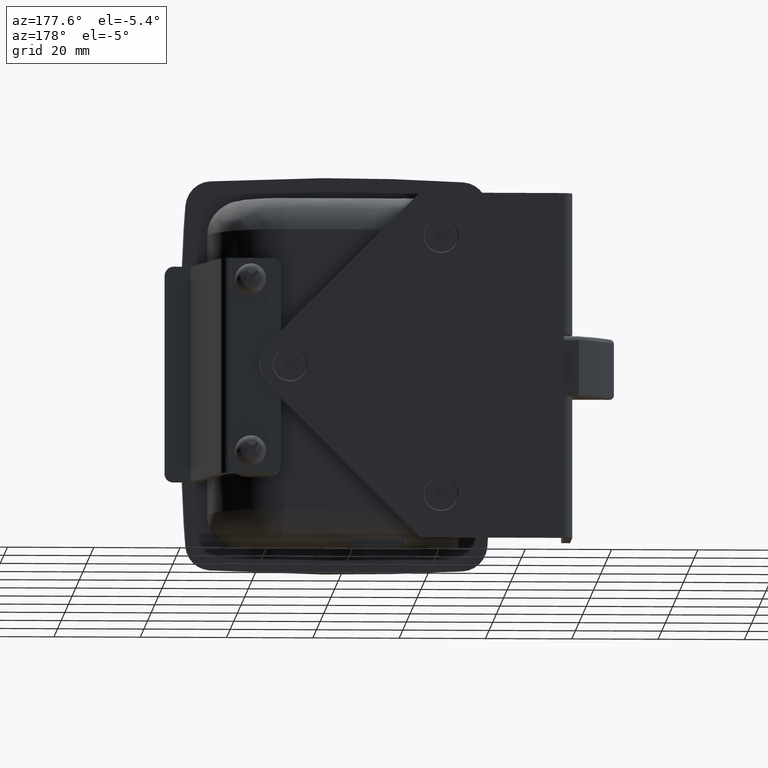
[diagram: clean part render]
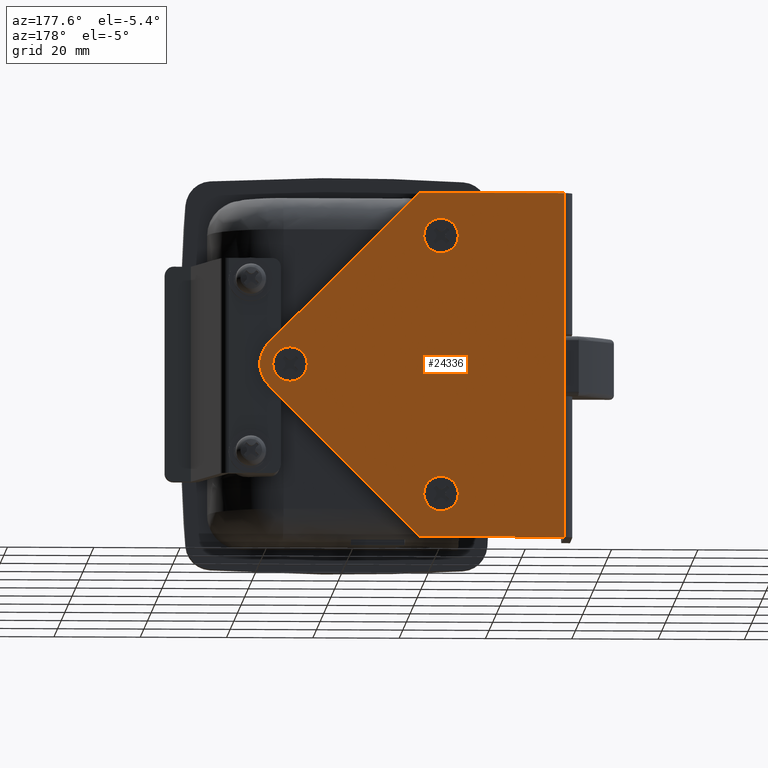
[diagram: same view with one face highlighted and labeled with its STEP entity id]
A machine part, auxiliary view. The second image highlights one B-rep face of the part: STEP entity #24336.
In plain terms, the highlighted face is a freeform B-spline surface patch.
Its self-contained STEP definition (entity closure, byte-faithful):
#19249=CARTESIAN_POINT('',(-20.133396563855019,-0.000000210587792,-32.789727528948703));
#19250=VERTEX_POINT('',#19249);
#19256=CARTESIAN_POINT('',(-23.0,0.0,-33.999999999999893));
#19257=VERTEX_POINT('',#19256);
#19258=CARTESIAN_POINT('',(-23.0,0.0,-33.999999999999893));
#19259=CARTESIAN_POINT('',(-22.667094508049530,-0.000000024456062,-34.000055991093582));
#19260=CARTESIAN_POINT('',(-21.934650458644938,-0.000000078263217,-33.908178191010009));
#19261=CARTESIAN_POINT('',(-20.942227840097189,-0.000000151169042,-33.489129033503417));
#19262=CARTESIAN_POINT('',(-20.365531153862129,-0.000000193534610,-33.028355215674729));
#19263=CARTESIAN_POINT('',(-20.133396563855019,-0.000000210587792,-32.789727528948703));
#19264=B_SPLINE_CURVE_WITH_KNOTS('',3,(#19258,#19259,#19260,#19261,#19262,#19263),.UNSPECIFIED.,.F.,.U.,(4,1,1,4),(0.000000034648143,0.998744305631383,2.197230040681927,3.195974311626448),.UNSPECIFIED.);
#19265=EDGE_CURVE('',#19257,#19250,#19264,.T.);
#19267=CARTESIAN_POINT('',(-26.999999999999531,0.0,-30.000001685324719));
#19268=VERTEX_POINT('',#19267);
#19269=CARTESIAN_POINT('',(-26.999999999999531,0.0,-30.000001685324719));
#19270=CARTESIAN_POINT('',(-27.000313395828961,0.0,-30.441841702235770));
#19271=CARTESIAN_POINT('',(-26.895878037058271,0.0,-31.063393605895829));
#19272=CARTESIAN_POINT('',(-26.520134759852692,0.0,-31.955085279077821));
#19273=CARTESIAN_POINT('',(-26.076152879275980,0.0,-32.610822663651682));
#19274=CARTESIAN_POINT('',(-25.353362716734480,0.0,-33.282246860508579));
#19275=CARTESIAN_POINT('',(-24.357889448853829,0.0,-33.838339061026097));
#19276=CARTESIAN_POINT('',(-23.490908774452279,0.0,-34.000396904762013));
#19277=CARTESIAN_POINT('',(-23.0,0.0,-33.999999999999893));
#19278=B_SPLINE_CURVE_WITH_KNOTS('',3,(#19269,#19270,#19271,#19272,#19273,#19274,#19275,#19276,#19277),.UNSPECIFIED.,.F.,.U.,(4,1,1,1,1,1,4),(0.000000132171101,1.325361099585745,1.865337516033662,2.896177789759722,3.681547613703553,4.810595681567911,6.283223781628146),.UNSPECIFIED.);
#19279=EDGE_CURVE('',#19268,#19257,#19278,.T.);
#19281=CARTESIAN_POINT('',(-23.0,0.0,-26.000000000000110));
#19282=VERTEX_POINT('',#19281);
#19283=CARTESIAN_POINT('',(-23.0,0.0,-26.000000000000110));
#19284=CARTESIAN_POINT('',(-23.376357173042170,0.0,-25.999834935176850));
#19285=CARTESIAN_POINT('',(-23.998025051340850,0.0,-26.088458537004222));
#19286=CARTESIAN_POINT('',(-24.869839752274729,0.0,-26.430861880723679));
#19287=CARTESIAN_POINT('',(-25.502481474280579,0.0,-26.848006654738750));
#19288=CARTESIAN_POINT('',(-26.054371184769540,0.0,-27.386574560065409));
#19289=CARTESIAN_POINT('',(-26.507101099517410,0.0,-28.012812725565020));
#19290=CARTESIAN_POINT('',(-26.895523964536270,0.0,-28.903796497246230));
#19291=CARTESIAN_POINT('',(-27.000176277191709,0.0,-29.607285831330969));
#19292=CARTESIAN_POINT('',(-26.999999999999531,0.0,-30.000001685324719));
#19293=B_SPLINE_CURVE_WITH_KNOTS('',3,(#19283,#19284,#19285,#19286,#19287,#19288,#19289,#19290,#19291,#19292),.UNSPECIFIED.,.F.,.U.,(4,1,1,1,1,1,1,4),(0.000000131565022,1.129010651891294,1.865338079667567,2.798016372485245,3.387044035746730,4.172444300581839,5.105124160417382,6.283225681393846),.UNSPECIFIED.);
#19294=EDGE_CURVE('',#19282,#19268,#19293,.T.);
#19296=CARTESIAN_POINT('',(-20.050890188576538,0.000000209863909,-27.297638744190721));
#19297=VERTEX_POINT('',#19296);
#19298=CARTESIAN_POINT('',(-20.050890188576538,0.000000209863909,-27.297638744190721));
#19299=CARTESIAN_POINT('',(-20.237563411194589,0.000000196579910,-27.093878884505539));
#19300=CARTESIAN_POINT('',(-20.705308235842381,0.000000163294355,-26.679160663921049));
#19301=CARTESIAN_POINT('',(-21.687570287777049,0.000000093394837,-26.152200643952789));
#19302=CARTESIAN_POINT('',(-22.516351653767661,0.000000034417278,-25.999637956784689));
#19303=CARTESIAN_POINT('',(-23.0,0.0,-26.000000000000110));
#19304=B_SPLINE_CURVE_WITH_KNOTS('',3,(#19298,#19299,#19300,#19301,#19302,#19303),.UNSPECIFIED.,.F.,.U.,(4,1,1,4),(0.000000036765950,0.829037971213209,1.865317210744966,3.316149023009813),.UNSPECIFIED.);
#19305=EDGE_CURVE('',#19297,#19282,#19304,.T.);
#19387=CARTESIAN_POINT('',(-19.000000000000469,0.0,-29.999998314675331));
#19388=VERTEX_POINT('',#19387);
#19389=CARTESIAN_POINT('',(-19.000000000000469,0.0,-29.999998314675331));
#19390=CARTESIAN_POINT('',(-18.999573571147181,0.000000037209144,-29.520866368812442));
#19391=CARTESIAN_POINT('',(-19.132124597284221,0.000000093590686,-28.794856767381759));
#19392=CARTESIAN_POINT('',(-19.566079847803358,0.000000162978666,-27.901366964011689));
#19393=CARTESIAN_POINT('',(-19.873379125968391,0.000000194823798,-27.491306060075321));
#19394=CARTESIAN_POINT('',(-20.050890188576538,0.000000209863909,-27.297638744190721));
#19395=B_SPLINE_CURVE_WITH_KNOTS('',3,(#19389,#19390,#19391,#19392,#19393,#19394),.UNSPECIFIED.,.F.,.U.,(4,1,1,4),(0.000000030478492,1.437197427992151,2.178945364975647,2.967074882568598),.UNSPECIFIED.);
#19396=EDGE_CURVE('',#19388,#19297,#19395,.T.);
#19398=CARTESIAN_POINT('',(-20.133396563855019,-0.000000210587792,-32.789727528948703));
#19399=CARTESIAN_POINT('',(-19.819114003363921,-0.000000186245870,-32.467261602177942));
#19400=CARTESIAN_POINT('',(-19.468116375392391,-0.000000147696019,-31.956578355505702));
#19401=CARTESIAN_POINT('',(-19.091612941264898,-0.000000075245266,-30.996798206359632));
#19402=CARTESIAN_POINT('',(-18.999751699863950,-0.000000031561525,-30.418104660514050));
#19403=CARTESIAN_POINT('',(-19.000000000000469,0.0,-29.999998314675331));
#19404=B_SPLINE_CURVE_WITH_KNOTS('',3,(#19398,#19399,#19400,#19401,#19402,#19403),.UNSPECIFIED.,.F.,.U.,(4,1,1,4),(0.000000032950937,1.350685079874031,1.833042686037790,3.087251644405259),.UNSPECIFIED.);
#19405=EDGE_CURVE('',#19250,#19388,#19404,.T.);
#19651=CARTESIAN_POINT('',(-20.133396563855030,-0.000000210587794,27.210472471051300));
#19652=VERTEX_POINT('',#19651);
#19658=CARTESIAN_POINT('',(-23.0,0.0,26.000200000000120));
#19659=VERTEX_POINT('',#19658);
#19660=CARTESIAN_POINT('',(-23.0,0.0,26.000200000000120));
#19661=CARTESIAN_POINT('',(-22.667077428343980,-0.000000024457317,26.000107496886269));
#19662=CARTESIAN_POINT('',(-22.051242626510241,-0.000000069698068,26.077549095233511));
#19663=CARTESIAN_POINT('',(-21.046975440607309,-0.000000143474025,26.450690955066889));
#19664=CARTESIAN_POINT('',(-20.446642847415362,-0.000000187575946,26.888120961807001));
#19665=CARTESIAN_POINT('',(-20.133396563855030,-0.000000210587794,27.210472471051300));
#19666=B_SPLINE_CURVE_WITH_KNOTS('',3,(#19660,#19661,#19662,#19663,#19664,#19665),.UNSPECIFIED.,.F.,.U.,(4,1,1,4),(0.000000034646320,0.998744305630864,1.847671395617139,3.195974311626441),.UNSPECIFIED.);
#19667=EDGE_CURVE('',#19659,#19652,#19666,.T.);
#19669=CARTESIAN_POINT('',(-26.999999999999542,0.0,30.000198314675291));
#19670=VERTEX_POINT('',#19669);
#19671=CARTESIAN_POINT('',(-26.999999999999542,0.0,30.000198314675291));
#19672=CARTESIAN_POINT('',(-27.000303790733138,0.0,29.558367028933510));
#19673=CARTESIAN_POINT('',(-26.887661001884219,0.0,28.887710196191101));
#19674=CARTESIAN_POINT('',(-26.508223559684119,0.0,28.031941757806980));
#19675=CARTESIAN_POINT('',(-25.996824722881851,0.0,27.286094586133100));
#19676=CARTESIAN_POINT('',(-25.298514618467149,0.0,26.676324521092770));
#19677=CARTESIAN_POINT('',(-24.464412591304200,0.0,26.250177660593248));
#19678=CARTESIAN_POINT('',(-23.736307678243382,0.0,26.043862017544349));
#19679=CARTESIAN_POINT('',(-23.229069011827921,0.0,26.000188478905901));
#19680=CARTESIAN_POINT('',(-23.0,0.0,26.000200000000120));
#19681=B_SPLINE_CURVE_WITH_KNOTS('',3,(#19671,#19672,#19673,#19674,#19675,#19676,#19677,#19678,#19679,#19680),.UNSPECIFIED.,.F.,.U.,(4,1,1,1,1,1,1,4),(0.000000132154022,1.325361099572937,2.012608105020446,2.798015525534259,4.025170419548584,4.761506139046562,5.596011326107456,6.283223781628146),.UNSPECIFIED.);
#19682=EDGE_CURVE('',#19670,#19659,#19681,.T.);
#19684=CARTESIAN_POINT('',(-23.0,0.0,34.000199999999893));
#19685=VERTEX_POINT('',#19684);
#19686=CARTESIAN_POINT('',(-23.0,0.0,34.000199999999893));
#19687=CARTESIAN_POINT('',(-23.441835230287712,0.0,34.000518313902752));
#19688=CARTESIAN_POINT('',(-24.112484178113569,0.0,33.887845821984932));
#19689=CARTESIAN_POINT('',(-24.968289967757350,0.0,33.508456236688602));
#19690=CARTESIAN_POINT('',(-25.537695694522490,0.0,33.117793398375142));
#19691=CARTESIAN_POINT('',(-26.077865524758160,0.0,32.590719597750677));
#19692=CARTESIAN_POINT('',(-26.580388666480850,0.0,31.877427936415781));
#19693=CARTESIAN_POINT('',(-26.925680902039929,0.0,30.965599678390870));
#19694=CARTESIAN_POINT('',(-27.000028534526550,0.0,30.294711632714119));
#19695=CARTESIAN_POINT('',(-26.999999999999542,0.0,30.000198314675291));
#19696=B_SPLINE_CURVE_WITH_KNOTS('',3,(#19686,#19687,#19688,#19689,#19690,#19691,#19692,#19693,#19694,#19695),.UNSPECIFIED.,.F.,.U.,(4,1,1,1,1,1,1,4),(0.000000131578755,1.325361499785727,2.012608712971561,2.798016372491647,3.387044035751353,4.270618328300147,5.399666954597524,6.283225681393748),.UNSPECIFIED.);
#19697=EDGE_CURVE('',#19685,#19670,#19696,.T.);
#19699=CARTESIAN_POINT('',(-20.050890188576531,0.000000209863909,32.702561255809293));
#19700=VERTEX_POINT('',#19699);
#19701=CARTESIAN_POINT('',(-20.050890188576531,0.000000209863909,32.702561255809293));
#19702=CARTESIAN_POINT('',(-20.237562078336939,0.000000196580004,32.906323772159098));
#19703=CARTESIAN_POINT('',(-20.705307466696159,0.000000163294409,33.321043406812301));
#19704=CARTESIAN_POINT('',(-21.687577524123729,0.000000093394322,33.847971582733351));
#19705=CARTESIAN_POINT('',(-22.516346763644989,0.000000034417626,34.000589474540448));
#19706=CARTESIAN_POINT('',(-23.0,0.0,34.000199999999893));
#19707=B_SPLINE_CURVE_WITH_KNOTS('',3,(#19701,#19702,#19703,#19704,#19705,#19706),.UNSPECIFIED.,.F.,.U.,(4,1,1,4),(0.000000036766457,0.829037971214180,1.865317210745354,3.316149023009781),.UNSPECIFIED.);
#19708=EDGE_CURVE('',#19700,#19685,#19707,.T.);
#19791=CARTESIAN_POINT('',(-19.000000000000469,0.0,30.000201685324679));
#19792=VERTEX_POINT('',#19791);
#19793=CARTESIAN_POINT('',(-19.000000000000469,0.0,30.000201685324679));
#19794=CARTESIAN_POINT('',(-18.999636994532331,0.000000037208451,30.479324709051241));
#19795=CARTESIAN_POINT('',(-19.132064039852420,0.000000093591459,31.205353186036870));
#19796=CARTESIAN_POINT('',(-19.566094817378790,0.000000162978484,32.098830697507218));
#19797=CARTESIAN_POINT('',(-19.873379652141988,0.000000194823791,32.508893860071467));
#19798=CARTESIAN_POINT('',(-20.050890188576531,0.000000209863909,32.702561255809293));
#19799=B_SPLINE_CURVE_WITH_KNOTS('',3,(#19793,#19794,#19795,#19796,#19797,#19798),.UNSPECIFIED.,.F.,.U.,(4,1,1,4),(0.000000030478101,1.437197427991600,2.178945364975280,2.967074882568622),.UNSPECIFIED.);
#19800=EDGE_CURVE('',#19792,#19700,#19799,.T.);
#19802=CARTESIAN_POINT('',(-20.133396563855030,-0.000000210587794,27.210472471051300));
#19803=CARTESIAN_POINT('',(-19.875372694419141,-0.000000190586686,27.475434121381241));
#19804=CARTESIAN_POINT('',(-19.510548322770720,-0.000000153036544,27.972873881239600));
#19805=CARTESIAN_POINT('',(-19.104373448235219,-0.000000081313101,28.923019100518751));
#19806=CARTESIAN_POINT('',(-18.999753453545811,-0.000000031561454,29.582096281820132));
#19807=CARTESIAN_POINT('',(-19.000000000000469,0.0,30.000201685324679));
#19808=B_SPLINE_CURVE_WITH_KNOTS('',3,(#19802,#19803,#19804,#19805,#19806,#19807),.UNSPECIFIED.,.F.,.U.,(4,1,1,4),(0.000000032948692,1.109483537656666,1.833042686037750,3.087251644405271),.UNSPECIFIED.);
#19809=EDGE_CURVE('',#19652,#19792,#19808,.T.);
#20058=CARTESIAN_POINT('',(14.866603436144979,-0.000000210587794,-2.789727528948705));
#20059=VERTEX_POINT('',#20058);
#20065=CARTESIAN_POINT('',(12.0,0.0,-3.999999999999890));
#20066=VERTEX_POINT('',#20065);
#20067=CARTESIAN_POINT('',(12.0,0.0,-3.999999999999890));
#20068=CARTESIAN_POINT('',(12.332921894677440,-0.000000024457268,-4.000089838072781));
#20069=CARTESIAN_POINT('',(12.948754594387880,-0.000000069697864,-3.922646672308956));
#20070=CARTESIAN_POINT('',(13.953037848313000,-0.000000143475001,-3.549529844813070));
#20071=CARTESIAN_POINT('',(14.553342357354110,-0.000000187574859,-3.112058027517724));
#20072=CARTESIAN_POINT('',(14.866603436144979,-0.000000210587794,-2.789727528948705));
#20073=B_SPLINE_CURVE_WITH_KNOTS('',3,(#20067,#20068,#20069,#20070,#20071,#20072),.UNSPECIFIED.,.F.,.U.,(4,1,1,4),(0.000000034646226,0.998744305630441,1.847671395616756,3.195974311626446),.UNSPECIFIED.);
#20074=EDGE_CURVE('',#20066,#20059,#20073,.T.);
#20076=CARTESIAN_POINT('',(8.000000000000467,0.0,-0.000001685324713));
#20077=VERTEX_POINT('',#20076);
#20078=CARTESIAN_POINT('',(8.000000000000467,0.0,-0.000001685324713));
#20079=CARTESIAN_POINT('',(7.999823864090568,0.0,-0.409082736497220));
#20080=CARTESIAN_POINT('',(8.119004331305378,0.0,-1.177984121491515));
#20081=CARTESIAN_POINT('',(8.606071531007594,0.0,-2.207996691200273));
#20082=CARTESIAN_POINT('',(9.274812817254640,0.0,-2.983148844036436));
#20083=CARTESIAN_POINT('',(9.961309850694599,0.0,-3.466493185259628));
#20084=CARTESIAN_POINT('',(10.838508358678030,0.0,-3.874931507429968));
#20085=CARTESIAN_POINT('',(11.509043017644840,0.0,-4.000453069147781));
#20086=CARTESIAN_POINT('',(12.0,0.0,-3.999999999999890));
#20087=B_SPLINE_CURVE_WITH_KNOTS('',3,(#20078,#20079,#20080,#20081,#20082,#20083,#20084,#20085,#20086),.UNSPECIFIED.,.F.,.U.,(4,1,1,1,1,1,4),(0.000000132166324,1.227184282562763,2.307122500206384,3.387043014632212,4.270617036140913,4.810595681566428,6.283223781628152),.UNSPECIFIED.);
#20088=EDGE_CURVE('',#20077,#20066,#20087,.T.);
#20090=CARTESIAN_POINT('',(12.0,0.0,3.999999999999890));
#20091=VERTEX_POINT('',#20090);
#20092=CARTESIAN_POINT('',(12.0,0.0,3.999999999999890));
#20093=CARTESIAN_POINT('',(11.590915109962610,0.0,4.000186298261393));
#20094=CARTESIAN_POINT('',(10.969268334117761,0.0,3.903775348257391));
#20095=CARTESIAN_POINT('',(10.178707205534391,0.0,3.581882691818075));
#20096=CARTESIAN_POINT('',(9.535523886371689,0.0,3.185620258425840));
#20097=CARTESIAN_POINT('',(8.887420646144207,0.0,2.576239943812884));
#20098=CARTESIAN_POINT('',(8.397299139162364,0.0,1.812555408719421));
#20099=CARTESIAN_POINT('',(8.076391244037829,0.0,0.932611632166963));
#20100=CARTESIAN_POINT('',(7.999901613990617,0.0,0.343615432302259));
#20101=CARTESIAN_POINT('',(8.000000000000467,0.0,-0.000001685324713));
#20102=B_SPLINE_CURVE_WITH_KNOTS('',3,(#20092,#20093,#20094,#20095,#20096,#20097,#20098,#20099,#20100,#20101),.UNSPECIFIED.,.F.,.U.,(4,1,1,1,1,1,1,4),(0.000000131576487,1.227184653167844,1.865338079675286,2.552569075681234,3.485212411591890,4.516064871472392,5.252394291721213,6.283225681393816),.UNSPECIFIED.);
#20103=EDGE_CURVE('',#20091,#20077,#20102,.T.);
#20105=CARTESIAN_POINT('',(14.949109811423471,0.000000209863909,2.702361255809285));
#20106=VERTEX_POINT('',#20105);
#20107=CARTESIAN_POINT('',(14.949109811423471,0.000000209863909,2.702361255809285));
#20108=CARTESIAN_POINT('',(14.634273710331019,0.000000187459611,3.046467718398492));
#20109=CARTESIAN_POINT('',(14.077335235376911,0.000000147826877,3.472758476124416));
#20110=CARTESIAN_POINT('',(13.053438779242930,0.000000074964581,3.899761548896525));
#20111=CARTESIAN_POINT('',(12.414540373269521,0.000000029499432,4.000182445231225));
#20112=CARTESIAN_POINT('',(12.0,0.0,3.999999999999890));
#20113=B_SPLINE_CURVE_WITH_KNOTS('',3,(#20107,#20108,#20109,#20110,#20111,#20112),.UNSPECIFIED.,.F.,.U.,(4,1,1,4),(0.000000036765404,1.399010706081101,2.072592607411973,3.316149023009817),.UNSPECIFIED.);
#20114=EDGE_CURVE('',#20106,#20091,#20113,.T.);
#20198=CARTESIAN_POINT('',(15.999999999999540,0.0,0.000001685324673));
#20199=VERTEX_POINT('',#20198);
#20200=CARTESIAN_POINT('',(15.999999999999540,0.0,0.000001685324673));
#20201=CARTESIAN_POINT('',(16.000337821942718,0.000000037208018,0.479119132129070));
#20202=CARTESIAN_POINT('',(15.867958969446381,0.000000093591735,1.205156739729016));
#20203=CARTESIAN_POINT('',(15.433897823422770,0.000000162978371,2.098629242673860));
#20204=CARTESIAN_POINT('',(15.126620994745579,0.000000194823832,2.508694383348655));
#20205=CARTESIAN_POINT('',(14.949109811423471,0.000000209863909,2.702361255809285));
#20206=B_SPLINE_CURVE_WITH_KNOTS('',3,(#20200,#20201,#20202,#20203,#20204,#20205),.UNSPECIFIED.,.F.,.U.,(4,1,1,4),(0.000000030477881,1.437197427991962,2.178945364975520,2.967074882568618),.UNSPECIFIED.);
#20207=EDGE_CURVE('',#20199,#20106,#20206,.T.);
#20209=CARTESIAN_POINT('',(14.866603436144979,-0.000000210587794,-2.789727528948705));
#20210=CARTESIAN_POINT('',(15.180890207585289,-0.000000186246042,-2.467263859827815));
#20211=CARTESIAN_POINT('',(15.531877979479230,-0.000000147695890,-1.956576626224868));
#20212=CARTESIAN_POINT('',(15.908397149622290,-0.000000075245383,-0.996799748272277));
#20213=CARTESIAN_POINT('',(16.000236574360120,-0.000000031561409,-0.418103122455112));
#20214=CARTESIAN_POINT('',(15.999999999999540,0.0,0.000001685324673));
#20215=B_SPLINE_CURVE_WITH_KNOTS('',3,(#20209,#20210,#20211,#20212,#20213,#20214),.UNSPECIFIED.,.F.,.U.,(4,1,1,4),(0.000000032948831,1.350685079873615,1.833042686037649,3.087251644405265),.UNSPECIFIED.);
#20216=EDGE_CURVE('',#20059,#20199,#20215,.T.);
#21548=CARTESIAN_POINT('',(-51.500000000000000,0.0,7.200199999999900));
#21549=VERTEX_POINT('',#21548);
#21555=CARTESIAN_POINT('',(-51.500000000000000,0.0,-7.200000000000000));
#21556=VERTEX_POINT('',#21555);
#21557=CARTESIAN_POINT('',(-51.500000000000000,0.0,7.200199999999900));
#21558=CARTESIAN_POINT('',(-51.500000000000000,0.0,-7.200000000000000));
#21559=QUASI_UNIFORM_CURVE('',1,(#21557,#21558),.UNSPECIFIED.,.F.,.U.);
#21560=EDGE_CURVE('',#21549,#21556,#21559,.T.);
#21696=CARTESIAN_POINT('',(-51.500000000000000,0.0,-40.0));
#21697=VERTEX_POINT('',#21696);
#21698=CARTESIAN_POINT('',(-51.500000000000000,0.0,-40.0));
#21699=CARTESIAN_POINT('',(-51.500000000000000,0.0,-7.200000000000000));
#21700=QUASI_UNIFORM_CURVE('',1,(#21698,#21699),.UNSPECIFIED.,.F.,.U.);
#21701=EDGE_CURVE('',#21697,#21556,#21700,.T.);
#24076=CARTESIAN_POINT('',(-18.100000000000001,0.0,-40.0));
#24077=VERTEX_POINT('',#24076);
#24078=CARTESIAN_POINT('',(-18.100000000000001,0.0,-40.0));
#24079=CARTESIAN_POINT('',(-51.500000000000000,0.0,-40.0));
#24080=QUASI_UNIFORM_CURVE('',1,(#24078,#24079),.UNSPECIFIED.,.F.,.U.);
#24081=EDGE_CURVE('',#24077,#21697,#24080,.T.);
#24103=CARTESIAN_POINT('',(-51.500000000000000,0.0,40.000200000000000));
#24104=VERTEX_POINT('',#24103);
#24105=CARTESIAN_POINT('',(-18.100000000000001,0.0,40.000200000000000));
#24106=VERTEX_POINT('',#24105);
#24107=CARTESIAN_POINT('',(-51.500000000000000,0.0,40.000200000000000));
#24108=CARTESIAN_POINT('',(-18.100000000000001,0.0,40.000200000000000));
#24109=QUASI_UNIFORM_CURVE('',1,(#24107,#24108),.UNSPECIFIED.,.F.,.U.);
#24110=EDGE_CURVE('',#24104,#24106,#24109,.T.);
#24189=CARTESIAN_POINT('',(16.949985963325251,0.0,-4.949714036794970));
#24190=VERTEX_POINT('',#24189);
#24198=CARTESIAN_POINT('',(16.949985963325251,0.0,-4.949714036794970));
#24199=CARTESIAN_POINT('',(-18.100000000000001,0.0,-40.0));
#24200=QUASI_UNIFORM_CURVE('',1,(#24198,#24199),.UNSPECIFIED.,.F.,.U.);
#24201=EDGE_CURVE('',#24190,#24077,#24200,.T.);
#24222=CARTESIAN_POINT('',(16.949999999999999,0.0,4.949800000000000));
#24223=VERTEX_POINT('',#24222);
#24224=CARTESIAN_POINT('',(16.949985963325251,0.0,-4.949714036794970));
#24225=CARTESIAN_POINT('',(17.314516943384600,0.0,-4.585327892281759));
#24226=CARTESIAN_POINT('',(17.854435333548071,0.0,-3.910458527533475));
#24227=CARTESIAN_POINT('',(18.409343973137702,0.0,-2.872253609421156));
#24228=CARTESIAN_POINT('',(18.812647150752710,0.0,-1.766813083759550));
#24229=CARTESIAN_POINT('',(19.024414056687419,0.0,-0.546262193771496));
#24230=CARTESIAN_POINT('',(18.989843256173309,0.0,0.861602985847742));
#24231=CARTESIAN_POINT('',(18.689258383389870,0.0,2.239949976546889));
#24232=CARTESIAN_POINT('',(18.029361081919241,0.0,3.680536136070887));
#24233=CARTESIAN_POINT('',(17.355052073006188,0.0,4.544937090459984));
#24234=CARTESIAN_POINT('',(16.949999999999999,0.0,4.949800000000000));
#24235=B_SPLINE_CURVE_WITH_KNOTS('',3,(#24224,#24225,#24226,#24227,#24228,#24229,#24230,#24231,#24232,#24233,#24234),.UNSPECIFIED.,.F.,.U.,(4,1,1,1,1,1,1,1,4),(0.000000106034692,1.546247696273627,2.577110354963821,3.522054191563387,5.068324403745724,6.270972123570255,7.731334601474294,9.277619652102249,10.995677809973751),.UNSPECIFIED.);
#24236=EDGE_CURVE('',#24190,#24223,#24235,.T.);
#24254=CARTESIAN_POINT('',(-18.100000000000001,0.0,40.000200000000000));
#24255=CARTESIAN_POINT('',(16.949999999999999,0.0,4.949800000000000));
#24256=QUASI_UNIFORM_CURVE('',1,(#24254,#24255),.UNSPECIFIED.,.F.,.U.);
#24257=EDGE_CURVE('',#24106,#24223,#24256,.T.);
#24293=CARTESIAN_POINT('',(-55.021488958276827,0.0,43.996208332974817));
#24294=CARTESIAN_POINT('',(22.521773029822519,0.0,43.996208332974817));
#24295=CARTESIAN_POINT('',(-55.021488958276827,0.0,-43.996011909262442));
#24296=CARTESIAN_POINT('',(22.521773029822519,0.0,-43.996011909262442));
#24297=B_SPLINE_SURFACE_WITH_KNOTS('',1,1,((#24293,#24295),(#24294,#24296)),.UNSPECIFIED.,.F.,.F.,.U.,(2,2),(2,2),(0.0,77.543261988099360),(0.0,87.992220242237266),.UNSPECIFIED.);
#24298=ORIENTED_EDGE('',*,*,#24081,.T.);
#24299=ORIENTED_EDGE('',*,*,#21701,.T.);
#24300=ORIENTED_EDGE('',*,*,#21560,.F.);
#24301=CARTESIAN_POINT('',(-51.500000000000000,0.0,7.200199999999900));
#24302=CARTESIAN_POINT('',(-51.500000000000000,0.0,40.000200000000000));
#24303=QUASI_UNIFORM_CURVE('',1,(#24301,#24302),.UNSPECIFIED.,.F.,.U.);
#24304=EDGE_CURVE('',#21549,#24104,#24303,.T.);
#24305=ORIENTED_EDGE('',*,*,#24304,.T.);
#24306=ORIENTED_EDGE('',*,*,#24110,.T.);
#24307=ORIENTED_EDGE('',*,*,#24257,.T.);
#24308=ORIENTED_EDGE('',*,*,#24236,.F.);
#24309=ORIENTED_EDGE('',*,*,#24201,.T.);
#24310=EDGE_LOOP('',(#24298,#24299,#24300,#24305,#24306,#24307,#24308,#24309));
#24311=FACE_OUTER_BOUND('',#24310,.T.);
#24312=ORIENTED_EDGE('',*,*,#19697,.T.);
#24313=ORIENTED_EDGE('',*,*,#19682,.T.);
#24314=ORIENTED_EDGE('',*,*,#19667,.T.);
#24315=ORIENTED_EDGE('',*,*,#19809,.T.);
#24316=ORIENTED_EDGE('',*,*,#19800,.T.);
#24317=ORIENTED_EDGE('',*,*,#19708,.T.);
#24318=EDGE_LOOP('',(#24312,#24313,#24314,#24315,#24316,#24317));
#24319=FACE_BOUND('',#24318,.T.);
#24320=ORIENTED_EDGE('',*,*,#20103,.T.);
#24321=ORIENTED_EDGE('',*,*,#20088,.T.);
#24322=ORIENTED_EDGE('',*,*,#20074,.T.);
#24323=ORIENTED_EDGE('',*,*,#20216,.T.);
#24324=ORIENTED_EDGE('',*,*,#20207,.T.);
#24325=ORIENTED_EDGE('',*,*,#20114,.T.);
#24326=EDGE_LOOP('',(#24320,#24321,#24322,#24323,#24324,#24325));
#24327=FACE_BOUND('',#24326,.T.);
#24328=ORIENTED_EDGE('',*,*,#19294,.T.);
#24329=ORIENTED_EDGE('',*,*,#19279,.T.);
#24330=ORIENTED_EDGE('',*,*,#19265,.T.);
#24331=ORIENTED_EDGE('',*,*,#19405,.T.);
#24332=ORIENTED_EDGE('',*,*,#19396,.T.);
#24333=ORIENTED_EDGE('',*,*,#19305,.T.);
#24334=EDGE_LOOP('',(#24328,#24329,#24330,#24331,#24332,#24333));
#24335=FACE_BOUND('',#24334,.T.);
#24336=ADVANCED_FACE('',(#24311,#24319,#24327,#24335),#24297,.T.);